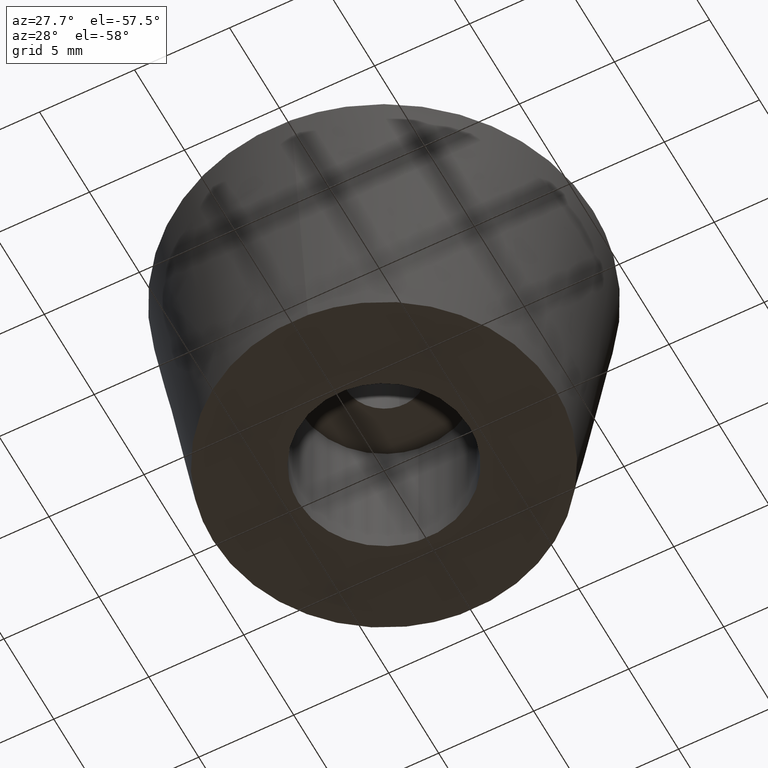
[diagram: clean part render]
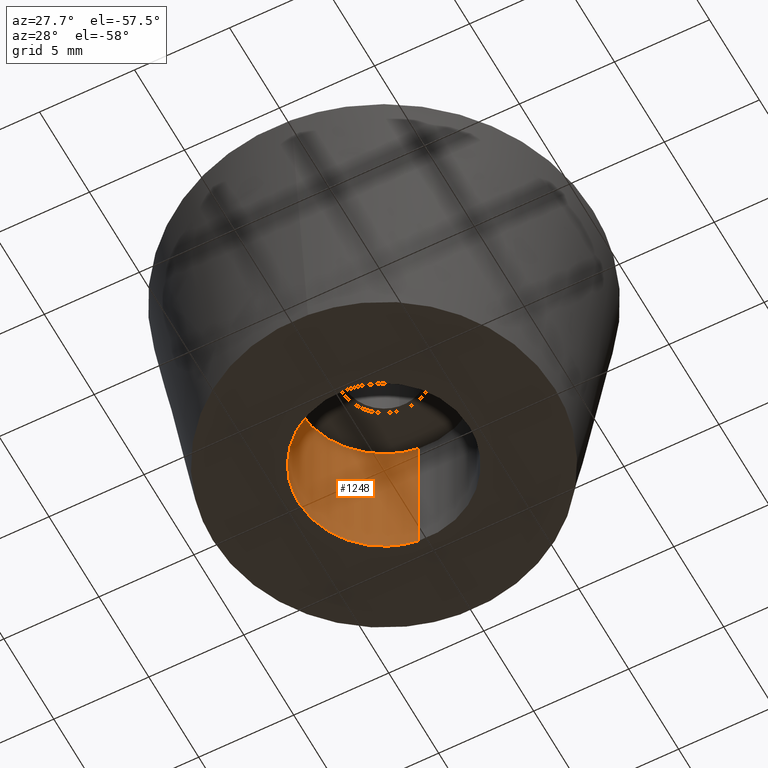
[diagram: same view with one face highlighted and labeled with its STEP entity id]
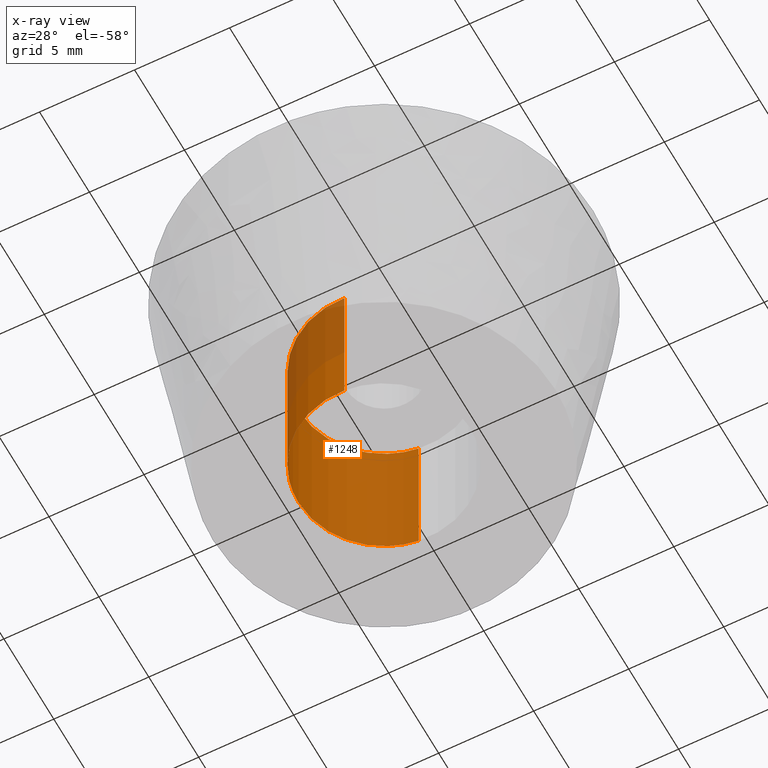
[diagram: x-ray of the same camera — body ghosted, the highlighted face saturated]
A machine part, auxiliary view. The second image highlights one B-rep face of the part: STEP entity #1248.
The next image is the same camera in x-ray: the body ghosted, the highlighted face saturated — about 19% of this face is hidden behind the body in this view.
In plain terms, the highlighted face is a freeform B-spline surface patch.
Its self-contained STEP definition (entity closure, byte-faithful):
#1081=CARTESIAN_POINT('',(-0.531147358239286,4.468543664751406,7.999999999999863));
#1082=VERTEX_POINT('',#1081);
#1100=CARTESIAN_POINT('',(-0.531147438978127,4.468543655154615,6.956599E-016));
#1101=VERTEX_POINT('',#1100);
#1102=CARTESIAN_POINT('',(-0.531147358239286,4.468543664751406,7.999999999999863));
#1103=CARTESIAN_POINT('',(-0.531147438978127,4.468543655154615,6.956599E-016));
#1104=QUASI_UNIFORM_CURVE('',1,(#1102,#1103),.UNSPECIFIED.,.F.,.U.);
#1105=EDGE_CURVE('',#1082,#1101,#1104,.T.);
#1124=CARTESIAN_POINT('',(0.274714620861846,-4.491606825744010,7.077672E-016));
#1125=VERTEX_POINT('',#1124);
#1139=CARTESIAN_POINT('',(0.274714574489476,-4.491606828580186,7.999999999999824));
#1140=VERTEX_POINT('',#1139);
#1141=CARTESIAN_POINT('',(0.274714574489476,-4.491606828580186,7.999999999999824));
#1142=CARTESIAN_POINT('',(0.274714620861846,-4.491606825744010,7.077672E-016));
#1143=QUASI_UNIFORM_CURVE('',1,(#1141,#1142),.UNSPECIFIED.,.F.,.U.);
#1144=EDGE_CURVE('',#1140,#1125,#1143,.T.);
#1162=CARTESIAN_POINT('',(0.336609845909213,-4.487821151608547,8.199999999999839));
#1163=CARTESIAN_POINT('',(0.305752702420252,-4.489708455354689,8.199999999999834));
#1164=CARTESIAN_POINT('',(-4.216888164991543,-4.766325020805256,8.199999999999838));
#1165=CARTESIAN_POINT('',(-4.491606592898400,-0.274718427906856,8.199999999999838));
#1166=CARTESIAN_POINT('',(-4.751037885296373,3.966945708777753,8.199999999999838));
#1167=CARTESIAN_POINT('',(-0.499558072777999,4.472298530182094,8.199999999999838));
#1168=CARTESIAN_POINT('',(-0.468131902753029,4.476034006860424,8.199999999999839));
#1169=CARTESIAN_POINT('',(0.336609845909213,-4.487821151608547,-0.204999999999996));
#1170=CARTESIAN_POINT('',(0.305752702420252,-4.489708455354689,-0.204999999999996));
#1171=CARTESIAN_POINT('',(-4.216888164991543,-4.766325020805256,-0.204999999999996));
#1172=CARTESIAN_POINT('',(-4.491606592898400,-0.274718427906856,-0.204999999999996));
#1173=CARTESIAN_POINT('',(-4.751037885296373,3.966945708777753,-0.204999999999996));
#1174=CARTESIAN_POINT('',(-0.499558072777999,4.472298530182094,-0.204999999999996));
#1175=CARTESIAN_POINT('',(-0.468131902753029,4.476034006860424,-0.204999999999996));
#1183=(BOUNDED_SURFACE()B_SPLINE_SURFACE(2,1,((#1162,#1169),(#1163,#1170),(#1164,#1171),(#1165,#1172),(#1166,#1173),(#1167,#1174),(#1168,#1175)),.UNSPECIFIED.,.F.,.F.,.U.)B_SPLINE_SURFACE_WITH_KNOTS((3,1,2,1,3),(2,2),(0.0,0.073062818483929,7.528906941199638,14.686517299006720,14.759592310404379),(0.0,8.404999999999834),.UNSPECIFIED.)GEOMETRIC_REPRESENTATION_ITEM()RATIONAL_B_SPLINE_SURFACE(((1.005740357155843,1.005740357155843),(1.002870178577922,1.002870178577922),(0.707106781186548,0.707106781186548),(1.0,1.0),(0.718822509939086,0.718822509939086),(0.980146805751071,0.980146805751071),(0.982787810707016,0.982787810707016)))REPRESENTATION_ITEM('')SURFACE());
#1184=CARTESIAN_POINT('',(-4.500000000000000,0.0,7.999999999999839));
#1185=VERTEX_POINT('',#1184);
#1186=CARTESIAN_POINT('',(-4.500000000000000,0.0,7.999999999999839));
#1187=CARTESIAN_POINT('',(-4.500000000000000,3.996791399574260,7.999999999999838));
#1188=CARTESIAN_POINT('',(-0.531147358239286,4.468543664751407,7.999999999999864));
#1196=(BOUNDED_CURVE()B_SPLINE_CURVE(2,(#1186,#1187,#1188),.UNSPECIFIED.,.F.,.U.)B_SPLINE_CURVE_WITH_KNOTS((3,3),(0.0,0.229562726827724),.UNSPECIFIED.)CURVE()GEOMETRIC_REPRESENTATION_ITEM()RATIONAL_B_SPLINE_CURVE((1.0,0.731050536079339,0.956027250690530))REPRESENTATION_ITEM(''));
#1197=EDGE_CURVE('',#1185,#1082,#1196,.T.);
#1198=ORIENTED_EDGE('',*,*,#1197,.F.);
#1199=CARTESIAN_POINT('',(0.274714574489476,-4.491606828580186,7.999999999999824));
#1200=CARTESIAN_POINT('',(0.137485502732782,-4.499999999999999,7.999999999999839));
#1201=CARTESIAN_POINT('',(0.0,-4.500000000000000,7.999999999999839));
#1202=CARTESIAN_POINT('',(-4.500000000000000,-4.500000000000000,7.999999999999839));
#1203=CARTESIAN_POINT('',(-4.500000000000000,0.0,7.999999999999839));
#1211=(BOUNDED_CURVE()B_SPLINE_CURVE(2,(#1199,#1200,#1201,#1202,#1203),.UNSPECIFIED.,.F.,.U.)B_SPLINE_CURVE_WITH_KNOTS((3,2,3),(0.739333110272491,0.750000000000000,1.0),.UNSPECIFIED.)CURVE()GEOMETRIC_REPRESENTATION_ITEM()RATIONAL_B_SPLINE_CURVE((0.976072358930996,0.987502961331927,1.0,0.707106781186547,1.0))REPRESENTATION_ITEM(''));
#1212=EDGE_CURVE('',#1140,#1185,#1211,.T.);
#1213=ORIENTED_EDGE('',*,*,#1212,.F.);
#1214=ORIENTED_EDGE('',*,*,#1144,.T.);
#1215=CARTESIAN_POINT('',(-4.500000000000000,0.0,0.0));
#1216=VERTEX_POINT('',#1215);
#1217=CARTESIAN_POINT('',(0.274714620861846,-4.491606825744010,7.077672E-016));
#1218=CARTESIAN_POINT('',(0.137485525983976,-4.500000000000001,0.0));
#1219=CARTESIAN_POINT('',(0.0,-4.500000000000000,0.0));
#1220=CARTESIAN_POINT('',(-4.500000000000000,-4.500000000000000,0.0));
#1221=CARTESIAN_POINT('',(-4.500000000000000,0.0,0.0));
#1229=(BOUNDED_CURVE()B_SPLINE_CURVE(2,(#1217,#1218,#1219,#1220,#1221),.UNSPECIFIED.,.F.,.U.)B_SPLINE_CURVE_WITH_KNOTS((3,2,3),(0.739333108491078,0.750000000000000,1.0),.UNSPECIFIED.)CURVE()GEOMETRIC_REPRESENTATION_ITEM()RATIONAL_B_SPLINE_CURVE((0.976072355113085,0.987502959244872,1.0,0.707106781186547,1.0))REPRESENTATION_ITEM(''));
#1230=EDGE_CURVE('',#1125,#1216,#1229,.T.);
#1231=ORIENTED_EDGE('',*,*,#1230,.T.);
#1232=CARTESIAN_POINT('',(-4.500000000000000,0.0,0.0));
#1233=CARTESIAN_POINT('',(-4.500000000000000,3.996791326850819,0.0));
#1234=CARTESIAN_POINT('',(-0.531147438978127,4.468543655154615,6.956599E-016));
#1242=(BOUNDED_CURVE()B_SPLINE_CURVE(2,(#1232,#1233,#1234),.UNSPECIFIED.,.F.,.U.)B_SPLINE_CURVE_WITH_KNOTS((3,3),(0.0,0.229562723774127),.UNSPECIFIED.)CURVE()GEOMETRIC_REPRESENTATION_ITEM()RATIONAL_B_SPLINE_CURVE((1.0,0.731050539656850,0.956027244705340))REPRESENTATION_ITEM(''));
#1243=EDGE_CURVE('',#1216,#1101,#1242,.T.);
#1244=ORIENTED_EDGE('',*,*,#1243,.T.);
#1245=ORIENTED_EDGE('',*,*,#1105,.F.);
#1246=EDGE_LOOP('',(#1198,#1213,#1214,#1231,#1244,#1245));
#1247=FACE_OUTER_BOUND('',#1246,.T.);
#1248=ADVANCED_FACE('',(#1247),#1183,.F.);